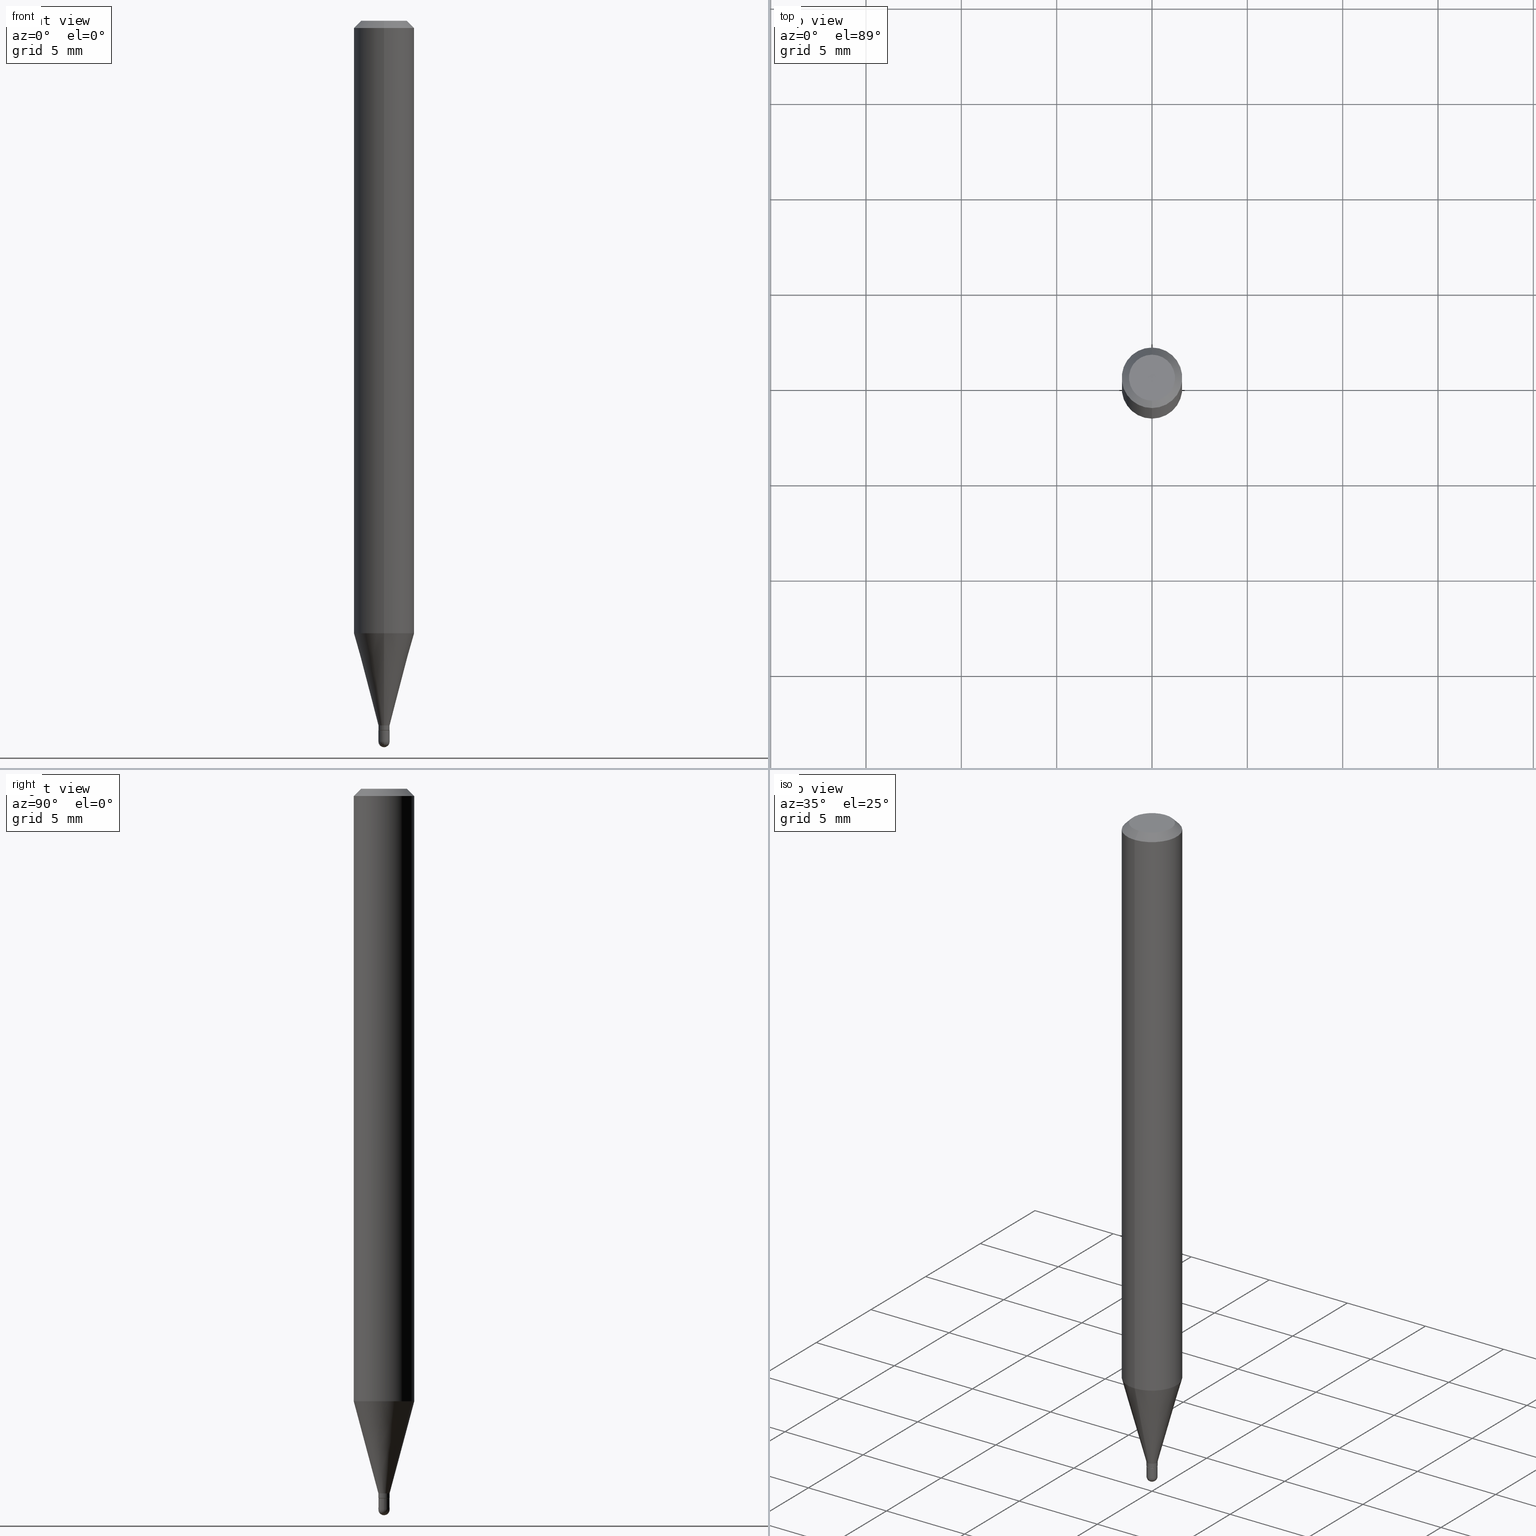
[diagram: canonical four-view strip — front | top / right | iso, engineering-drawing reading convention]
A machine part, canonical four-view strip (front | top / right | iso — engineering-drawing reading convention). The complete STEP part file that produces these views, byte-faithful:
ISO-10303-21;
HEADER;
FILE_DESCRIPTION (( 'STEP AP203' ),
    '1' );
FILE_NAME ('03047.STEP',
    '2024-03-08T18:03:28',
    ( '' ),
    ( '' ),
    'SwSTEP 2.0',
    'SolidWorks 2023',
    '' );
FILE_SCHEMA (( 'CONFIG_CONTROL_DESIGN' ));
ENDSEC;

DATA;
#1 = CARTESIAN_POINT ( 'NONE',  ( 8.171241461244765968E-17, 0.01149999999999476788, -1.488499999999999934 ) ) ;
#2 = ORIENTED_EDGE ( 'NONE', *, *, #170, .T. ) ;
#3 = CARTESIAN_POINT ( 'NONE',  ( 0.000000000000000000, 0.000000000000000000, 0.000000000000000000 ) ) ;
#4 = AXIS2_PLACEMENT_3D ( 'NONE', #508, #466, #498 ) ;
#5 = PERSON_AND_ORGANIZATION ( #509, #36 ) ;
#6 = DIRECTION ( 'NONE',  ( -2.445468806185136597E-29, 3.491481338843145583E-15, 1.000000000000000000 ) ) ;
#7 = ORIENTED_EDGE ( 'NONE', *, *, #163, .F. ) ;
#8 = APPROVAL ( #512, 'UNSPECIFIED' ) ;
#9 = CARTESIAN_POINT ( 'NONE',  ( 3.558155548032866696E-29, -5.080107589137887116E-15, -1.454999999999999849 ) ) ;
#10 = ORIENTED_EDGE ( 'NONE', *, *, #18, .F. ) ;
#11 = EDGE_LOOP ( 'NONE', ( #240, #290, #249, #296 ) ) ;
#12 = ORIENTED_EDGE ( 'NONE', *, *, #215, .T. ) ;
#13 = VECTOR ( 'NONE', #340, 39.37007874015748143 ) ;
#14 = EDGE_CURVE ( 'NONE', #354, #220, #192, .T. ) ;
#15 = AXIS2_PLACEMENT_3D ( 'NONE', #182, #67, #186 ) ;
#16 = DIRECTION ( 'NONE',  ( -2.445467730606780965E-29, 3.491482879132568905E-15, 1.000000000000000000 ) ) ;
#17 = ORIENTED_EDGE ( 'NONE', *, *, #55, .T. ) ;
#18 = EDGE_CURVE ( 'NONE', #171, #30, #39, .T. ) ;
#19 = ORIENTED_EDGE ( 'NONE', *, *, #367, .F. ) ;
#20 = DIRECTION ( 'NONE',  ( -2.445467730606780965E-29, 3.491482879132568905E-15, 1.000000000000000000 ) ) ;
#21 = FACE_OUTER_BOUND ( 'NONE', #459, .T. ) ;
#22 = EDGE_LOOP ( 'NONE', ( #495, #366, #216, #342 ) ) ;
#23 = CIRCLE ( 'NONE', #419, 0.06250000000000000000 ) ;
#24 = CARTESIAN_POINT ( 'NONE',  ( 3.092698447269238654E-29, -4.415557622705228023E-15, -1.264665408813987479 ) ) ;
#25 = VERTEX_POINT ( 'NONE', #297 ) ;
#26 = DIRECTION ( 'NONE',  ( -6.982962677686265922E-15, -1.000000000000000000, 4.370956789862821150E-15 ) ) ;
#27 = VERTEX_POINT ( 'NONE', #454 ) ;
#28 = CARTESIAN_POINT ( 'NONE',  ( -8.030407079339151842E-17, -0.01149999999999992348, 4.015205311002427370E-17 ) ) ;
#29 = DIRECTION ( 'NONE',  ( 6.982962677686265922E-15, 1.000000000000000000, -3.483106191921935554E-15 ) ) ;
#30 = VERTEX_POINT ( 'NONE', #65 ) ;
#31 = AXIS2_PLACEMENT_3D ( 'NONE', #137, #69, #375 ) ;
#32 = CARTESIAN_POINT ( 'NONE',  ( 0.000000000000000000, 0.000000000000000000, 0.000000000000000000 ) ) ;
#33 = EDGE_CURVE ( 'NONE', #364, #220, #213, .T. ) ;
#34 = ADVANCED_FACE ( 'NONE', ( #497 ), #343, .T. ) ;
#35 = DIRECTION ( 'NONE',  ( -2.445468806185136597E-29, 3.491481338843145583E-15, 1.000000000000000000 ) ) ;
#36 = ORGANIZATION ( 'UNSPECIFIED', 'UNSPECIFIED', '' ) ;
#37 = DIRECTION ( 'NONE',  ( -2.445467730606780965E-29, 3.491482879132568905E-15, 1.000000000000000000 ) ) ;
#38 = DIRECTION ( 'NONE',  ( -6.982962677686265133E-15, -1.000000000000000000, 0.000000000000000000 ) ) ;
#39 = CIRCLE ( 'NONE', #330, 0.01149999999999999981 ) ;
#40 = AXIS2_PLACEMENT_3D ( 'NONE', #112, #417, #421 ) ;
#41 = PERSON_AND_ORGANIZATION ( #509, #36 ) ;
#42 = VERTEX_POINT ( 'NONE', #302 ) ;
#43 = VECTOR ( 'NONE', #188, 39.37007874015748143 ) ;
#44 = DIRECTION ( 'NONE',  ( -6.982962677686265922E-15, -1.000000000000000000, 0.000000000000000000 ) ) ;
#45 = DIRECTION ( 'NONE',  ( -6.982962677686265133E-15, -1.000000000000000000, 0.000000000000000000 ) ) ;
#46 = CALENDAR_DATE ( 2024, 8, 3 ) ;
#47 = DIRECTION ( 'NONE',  ( 7.105427357601001070E-15, 1.000000000000000000, 0.000000000000000000 ) ) ;
#48 = ORIENTED_EDGE ( 'NONE', *, *, #55, .F. ) ;
#49 = PERSON_AND_ORGANIZATION ( #509, #36 ) ;
#50 = DIRECTION ( 'NONE',  ( -2.445467730606780965E-29, 3.491482879132568905E-15, 1.000000000000000000 ) ) ;
#51 = ORIENTED_EDGE ( 'NONE', *, *, #14, .F. ) ;
#52 = FACE_OUTER_BOUND ( 'NONE', #200, .T. ) ;
#53 = EDGE_LOOP ( 'NONE', ( #486, #379, #361, #164, #275 ) ) ;
#54 = ORIENTED_EDGE ( 'NONE', *, *, #382, .T. ) ;
#55 = EDGE_CURVE ( 'NONE', #27, #107, #185, .T. ) ;
#56 = EDGE_CURVE ( 'NONE', #220, #354, #503, .T. ) ;
#57 = AXIS2_PLACEMENT_3D ( 'NONE', #264, #76, #63 ) ;
#58 = AXIS2_PLACEMENT_3D ( 'NONE', #323, #6, #483 ) ;
#59 = ORIENTED_EDGE ( 'NONE', *, *, #165, .T. ) ;
#60 = ADVANCED_FACE ( 'NONE', ( #373 ), #460, .F. ) ;
#61 = AXIS2_PLACEMENT_3D ( 'NONE', #462, #422, #388 ) ;
#62 = DIRECTION ( 'NONE',  ( 1.000000000000000000, -6.982962677686291165E-15, 0.000000000000000000 ) ) ;
#63 = DIRECTION ( 'NONE',  ( -6.982962677686266711E-15, -1.000000000000000000, 0.000000000000000000 ) ) ;
#64 = CIRCLE ( 'NONE', #77, 0.01100000000000000110 ) ;
#65 = CARTESIAN_POINT ( 'NONE',  ( -0.01149999999999999981, -5.074332652524203511E-15, -1.488499999999999934 ) ) ;
#66 = APPROVAL_PERSON_ORGANIZATION ( #5, #276, #156 ) ;
#67 = DIRECTION ( 'NONE',  ( -2.445468806185136597E-29, 3.491481338843145583E-15, 1.000000000000000000 ) ) ;
#68 = ORIENTED_EDGE ( 'NONE', *, *, #205, .T. ) ;
#69 = DIRECTION ( 'NONE',  ( 2.438088387897960049E-29, -3.491481338843145188E-15, -1.000000000000000000 ) ) ;
#70 = FACE_OUTER_BOUND ( 'NONE', #234, .T. ) ;
#71 = ORIENTED_EDGE ( 'NONE', *, *, #346, .T. ) ;
#72 = EDGE_CURVE ( 'NONE', #162, #191, #319, .T. ) ;
#73 = SPHERICAL_SURFACE ( 'NONE', #452, 0.01149999999999993215 ) ;
#74 = EDGE_CURVE ( 'NONE', #220, #448, #381, .T. ) ;
#75 = FACE_OUTER_BOUND ( 'NONE', #104, .T. ) ;
#76 = DIRECTION ( 'NONE',  ( -2.445467730606780965E-29, 3.491482879132568905E-15, 1.000000000000000000 ) ) ;
#77 = AXIS2_PLACEMENT_3D ( 'NONE', #124, #401, #281 ) ;
#78 = CARTESIAN_POINT ( 'NONE',  ( 0.000000000000000000, 0.000000000000000000, 0.000000000000000000 ) ) ;
#79 = DIRECTION ( 'NONE',  ( -6.982962677686265133E-15, -1.000000000000000000, 0.000000000000000000 ) ) ;
#80 = EDGE_CURVE ( 'NONE', #162, #198, #177, .T. ) ;
#81 = LINE ( 'NONE', #228, #43 ) ;
#82 = CC_DESIGN_DATE_AND_TIME_ASSIGNMENT ( #394, #441, ( #129 ) ) ;
#83 = CIRCLE ( 'NONE', #157, 0.01149999999999993215 ) ;
#84 = PERSON_AND_ORGANIZATION_ROLE ( 'design_supplier' ) ;
#85 = CC_DESIGN_APPROVAL ( #245, ( #181 ) ) ;
#86 = PERSON_AND_ORGANIZATION ( #509, #36 ) ;
#87 = CARTESIAN_POINT ( 'NONE',  ( 8.171241461244653802E-17, 0.01149999999999484421, -1.454999999999999849 ) ) ;
#88 = VERTEX_POINT ( 'NONE', #267 ) ;
#89 = EDGE_CURVE ( 'NONE', #122, #212, #180, .T. ) ;
#90 = EDGE_CURVE ( 'NONE', #409, #212, #262, .T. ) ;
#91 = EDGE_LOOP ( 'NONE', ( #327, #248 ) ) ;
#92 = CIRCLE ( 'NONE', #427, 0.01149999999999992348 ) ;
#93 = ORIENTED_EDGE ( 'NONE', *, *, #205, .F. ) ;
#94 = CARTESIAN_POINT ( 'NONE',  ( -0.01149999999999999981, 8.171241461241151999E-17, -5.656775353793142476E-31 ) ) ;
#95 = ADVANCED_FACE ( 'NONE', ( #465 ), #73, .T. ) ;
#96 = ORIENTED_EDGE ( 'NONE', *, *, #140, .T. ) ;
#97 = EDGE_LOOP ( 'NONE', ( #223, #463, #411, #179 ) ) ;
#98 = DIRECTION ( 'NONE',  ( -6.982962677686265922E-15, -1.000000000000000000, 0.000000000000000000 ) ) ;
#99 = AXIS2_PLACEMENT_3D ( 'NONE', #187, #230, #151 ) ;
#100 = DIRECTION ( 'NONE',  ( -2.445468806185136597E-29, 3.491481338843145583E-15, 1.000000000000000000 ) ) ;
#101 = APPROVAL_PERSON_ORGANIZATION ( #41, #8, #236 ) ;
#102 = ORIENTED_EDGE ( 'NONE', *, *, #491, .F. ) ;
#103 = DIRECTION ( 'NONE',  ( -2.445468806185136877E-29, 3.491481338843145188E-15, 1.000000000000000000 ) ) ;
#104 = EDGE_LOOP ( 'NONE', ( #54, #372, #329, #266 ) ) ;
#105 = CARTESIAN_POINT ( 'NONE',  ( 3.092698447269238654E-29, -4.415557622705228023E-15, -1.264665408813987479 ) ) ;
#106 = DIRECTION ( 'NONE',  ( -2.445467730606780965E-29, 3.491482879132568905E-15, 1.000000000000000000 ) ) ;
#107 = VERTEX_POINT ( 'NONE', #424 ) ;
#108 = APPROVAL_PERSON_ORGANIZATION ( #315, #245, #392 ) ;
#109 = CARTESIAN_POINT ( 'NONE',  ( 7.993605777304681600E-17, 0.01099999999999488540, -1.465000000000000080 ) ) ;
#110 = ADVANCED_FACE ( 'NONE', ( #426 ), #386, .T. ) ;
#111 = CARTESIAN_POINT ( 'NONE',  ( -0.01149999999999999981, -5.074332652524203511E-15, -1.465000000000000080 ) ) ;
#112 = CARTESIAN_POINT ( 'NONE',  ( 3.582610225338934170E-29, -5.115022417929213693E-15, -1.465000000000000080 ) ) ;
#113 = CYLINDRICAL_SURFACE ( 'NONE', #349, 0.01149999999999999981 ) ;
#114 = CARTESIAN_POINT ( 'NONE',  ( 3.558155548032866696E-29, -5.080107589137887116E-15, -1.454999999999999849 ) ) ;
#115 =( CONVERSION_BASED_UNIT ( 'INCH', #473 ) LENGTH_UNIT ( ) NAMED_UNIT ( #328 ) );
#116 = CALENDAR_DATE ( 2024, 8, 3 ) ;
#117 = DATE_AND_TIME ( #46, #311 ) ;
#118 = CARTESIAN_POINT ( 'NONE',  ( 4.440892098500936776E-16, 0.06249999999999993755, -0.01499999999999997863 ) ) ;
#119 = ORIENTED_EDGE ( 'NONE', *, *, #18, .T. ) ;
#120 = CIRCLE ( 'NONE', #15, 0.01149999999999999981 ) ;
#121 = EDGE_CURVE ( 'NONE', #385, #364, #226, .T. ) ;
#122 = VERTEX_POINT ( 'NONE', #383 ) ;
#123 = DATE_AND_TIME ( #398, #303 ) ;
#124 = CARTESIAN_POINT ( 'NONE',  ( 3.582610225338934170E-29, -5.115022417929213693E-15, -1.465000000000000080 ) ) ;
#125 = FACE_OUTER_BOUND ( 'NONE', #282, .T. ) ;
#126 = ADVANCED_FACE ( 'NONE', ( #149 ), #307, .T. ) ;
#127 = CLOSED_SHELL ( 'NONE', ( #141, #324, #492, #415, #269, #393, #126, #451, #357, #405, #344, #110 ) ) ;
#128 = CONICAL_SURFACE ( 'NONE', #136, 0.01149999999999992348, 0.2617993877991502960 ) ;
#129 = SECURITY_CLASSIFICATION ( '', '', #317 ) ;
#130 = DIRECTION ( 'NONE',  ( -6.982962677686265922E-15, -1.000000000000000000, 3.491482879132568905E-15 ) ) ;
#131 = DIRECTION ( 'NONE',  ( -2.445467730606780965E-29, 3.491482879132568905E-15, 1.000000000000000000 ) ) ;
#132 = MANIFOLD_SOLID_BREP ( 'Body-Move/Copy2[1]', #255 ) ;
#133 = DIRECTION ( 'NONE',  ( -2.445467730606780965E-29, 3.491482879132568905E-15, 1.000000000000000000 ) ) ;
#134 = DIRECTION ( 'NONE',  ( -4.937700262164674260E-15, -0.7071067811865632269, 0.7071067811865319186 ) ) ;
#135 = CC_DESIGN_PERSON_AND_ORGANIZATION_ASSIGNMENT ( #274, #431, ( #129 ) ) ;
#136 = AXIS2_PLACEMENT_3D ( 'NONE', #347, #505, #38 ) ;
#137 = CARTESIAN_POINT ( 'NONE',  ( 8.030407079342786765E-17, 0.01149999999999488411, -1.465000000000000080 ) ) ;
#138 = FACE_OUTER_BOUND ( 'NONE', #91, .T. ) ;
#139 = EDGE_LOOP ( 'NONE', ( #68, #263 ) ) ;
#140 = EDGE_CURVE ( 'NONE', #354, #88, #250, .T. ) ;
#141 = ADVANCED_FACE ( 'NONE', ( #489 ), #453, .T. ) ;
#142 = CARTESIAN_POINT ( 'NONE',  ( 7.815970093364683513E-17, 0.01099999999999488540, -1.465000000000000080 ) ) ;
#143 = ORIENTED_EDGE ( 'NONE', *, *, #227, .T. ) ;
#144 = VECTOR ( 'NONE', #217, 39.37007874015748143 ) ;
#145 = CONICAL_SURFACE ( 'NONE', #272, 0.01149999999999992348, 0.2617993877991502960 ) ;
#146 = CARTESIAN_POINT ( 'NONE',  ( 3.582611801061225047E-29, -5.115020161405208194E-15, -1.465000000000000080 ) ) ;
#147 = FACE_OUTER_BOUND ( 'NONE', #488, .T. ) ;
#148 = DIRECTION ( 'NONE',  ( -2.445468806185136597E-29, 3.491481338843145583E-15, 1.000000000000000000 ) ) ;
#149 = FACE_OUTER_BOUND ( 'NONE', #11, .T. ) ;
#150 = FACE_OUTER_BOUND ( 'NONE', #476, .T. ) ;
#151 = DIRECTION ( 'NONE',  ( -6.982962677686265922E-15, -1.000000000000000000, 0.000000000000000000 ) ) ;
#152 = CIRCLE ( 'NONE', #300, 0.04749999999999999362 ) ;
#153 = EDGE_CURVE ( 'NONE', #27, #42, #152, .T. ) ;
#154 = APPROVAL_STATUS ( 'not_yet_approved' ) ;
#155 = MECHANICAL_CONTEXT ( 'NONE', #229, 'mechanical' ) ;
#156 = APPROVAL_ROLE ( '' ) ;
#157 = AXIS2_PLACEMENT_3D ( 'NONE', #407, #449, #98 ) ;
#158 = COORDINATED_UNIVERSAL_TIME_OFFSET ( 5, 0, .BEHIND. ) ;
#159 = CARTESIAN_POINT ( 'NONE',  ( -4.364351673553607559E-16, -0.06250000000000441314, -1.264665408813987257 ) ) ;
#160 = COORDINATED_UNIVERSAL_TIME_OFFSET ( 5, 0, .BEHIND. ) ;
#161 = CARTESIAN_POINT ( 'NONE',  ( -5.856619264596289913E-45, 8.361707511414266109E-31, 2.394887158516345188E-16 ) ) ;
#162 = VERTEX_POINT ( 'NONE', #210 ) ;
#163 = EDGE_CURVE ( 'NONE', #176, #25, #83, .T. ) ;
#164 = ORIENTED_EDGE ( 'NONE', *, *, #89, .T. ) ;
#165 = EDGE_CURVE ( 'NONE', #448, #191, #253, .T. ) ;
#166 = AXIS2_PLACEMENT_3D ( 'NONE', #105, #221, #26 ) ;
#167 = ORIENTED_EDGE ( 'NONE', *, *, #254, .F. ) ;
#168 = AXIS2_PLACEMENT_3D ( 'NONE', #350, #295, #430 ) ;
#169 = ORIENTED_EDGE ( 'NONE', *, *, #283, .T. ) ;
#170 = EDGE_CURVE ( 'NONE', #176, #171, #404, .T. ) ;
#171 = VERTEX_POINT ( 'NONE', #1 ) ;
#172 = AXIS2_PLACEMENT_3D ( 'NONE', #146, #148, #173 ) ;
#173 = DIRECTION ( 'NONE',  ( 1.000000000000000000, -6.982962677686291165E-15, 0.000000000000000000 ) ) ;
#174 = VECTOR ( 'NONE', #507, 39.37007874015748143 ) ;
#175 = LINE ( 'NONE', #268, #174 ) ;
#176 = VERTEX_POINT ( 'NONE', #480 ) ;
#177 = LINE ( 'NONE', #270, #13 ) ;
#178 = CARTESIAN_POINT ( 'NONE',  ( -8.030407079335594572E-17, -0.01150000000000500275, -1.454999999999999849 ) ) ;
#179 = ORIENTED_EDGE ( 'NONE', *, *, #346, .F. ) ;
#180 = LINE ( 'NONE', #506, #193 ) ;
#181 = PRODUCT_DEFINITION ( 'UNKNOWN', '', #429, #432 ) ;
#182 = CARTESIAN_POINT ( 'NONE',  ( 3.640080318006575506E-29, -5.197069972868022017E-15, -1.488499999999999934 ) ) ;
#183 = ORIENTED_EDGE ( 'NONE', *, *, #56, .T. ) ;
#184 = AXIS2_PLACEMENT_3D ( 'NONE', #410, #333, #416 ) ;
#185 = LINE ( 'NONE', #259, #144 ) ;
#186 = DIRECTION ( 'NONE',  ( 1.000000000000000000, -6.982962677686291165E-15, 0.000000000000000000 ) ) ;
#187 = CARTESIAN_POINT ( 'NONE',  ( 3.582610225338934170E-29, -5.115022417929213693E-15, -1.465000000000000080 ) ) ;
#188 = DIRECTION ( 'NONE',  ( -2.445467730606780965E-29, 3.491482879132568905E-15, 1.000000000000000000 ) ) ;
#189 = CC_DESIGN_PERSON_AND_ORGANIZATION_ASSIGNMENT ( #362, #231, ( #273 ) ) ;
#190 = APPROVAL_STATUS ( 'not_yet_approved' ) ;
#191 = VERTEX_POINT ( 'NONE', #159 ) ;
#192 = CIRCLE ( 'NONE', #207, 0.01149999999999992521 ) ;
#193 = VECTOR ( 'NONE', #103, 39.37007874015748143 ) ;
#194 = DIRECTION ( 'NONE',  ( 1.000000000000000000, -6.982962677686265922E-15, 4.883557194083112901E-29 ) ) ;
#195 = CARTESIAN_POINT ( 'NONE',  ( 0.000000000000000000, 0.000000000000000000, 0.000000000000000000 ) ) ;
#196 = ORIENTED_EDGE ( 'NONE', *, *, #74, .F. ) ;
#197 = DIRECTION ( 'NONE',  ( -2.445468806185136597E-29, 3.491481338843145583E-15, 1.000000000000000000 ) ) ;
#198 = VERTEX_POINT ( 'NONE', #118 ) ;
#199 = VECTOR ( 'NONE', #318, 39.37007874015748143 ) ;
#200 = EDGE_LOOP ( 'NONE', ( #447, #406, #423, #377 ) ) ;
#201 = DIRECTION ( 'NONE',  ( 1.000000000000000000, 0.000000000000000000, 0.000000000000000000 ) ) ;
#202 = DIRECTION ( 'NONE',  ( -6.982962677686265922E-15, -1.000000000000000000, 3.483106191921935554E-15 ) ) ;
#203 = CARTESIAN_POINT ( 'NONE',  ( -5.856619264596289913E-45, 8.361707511414266109E-31, 2.394887158516345188E-16 ) ) ;
#204 = ORIENTED_EDGE ( 'NONE', *, *, #89, .F. ) ;
#205 = EDGE_CURVE ( 'NONE', #212, #409, #494, .T. ) ;
#206 = FACE_OUTER_BOUND ( 'NONE', #243, .T. ) ;
#207 = AXIS2_PLACEMENT_3D ( 'NONE', #493, #133, #288 ) ;
#208 = AXIS2_PLACEMENT_3D ( 'NONE', #294, #197, #468 ) ;
#209 = ORIENTED_EDGE ( 'NONE', *, *, #310, .F. ) ;
#210 = CARTESIAN_POINT ( 'NONE',  ( 4.440892098500932831E-16, 0.06249999999999557992, -1.264665408813987924 ) ) ;
#211 = EDGE_CURVE ( 'NONE', #364, #385, #64, .T. ) ;
#212 = VERTEX_POINT ( 'NONE', #242 ) ;
#213 = LINE ( 'NONE', #260, #334 ) ;
#214 = CIRCLE ( 'NONE', #353, 0.06250000000000000000 ) ;
#215 = EDGE_CURVE ( 'NONE', #198, #107, #23, .T. ) ;
#216 = ORIENTED_EDGE ( 'NONE', *, *, #56, .F. ) ;
#217 = DIRECTION ( 'NONE',  ( -4.851104656540964275E-15, -0.7071067811865500152, -0.7071067811865450192 ) ) ;
#218 = CONICAL_SURFACE ( 'NONE', #481, 0.06250000000000000000, 0.7853981633974483900 ) ;
#219 = DIRECTION ( 'NONE',  ( -2.445467730606780965E-29, 3.491482879132568905E-15, 1.000000000000000000 ) ) ;
#220 = VERTEX_POINT ( 'NONE', #363 ) ;
#221 = DIRECTION ( 'NONE',  ( -2.445467730606780965E-29, 3.491482879132568905E-15, 1.000000000000000000 ) ) ;
#222 = CARTESIAN_POINT ( 'NONE',  ( 0.000000000000000000, 0.000000000000000000, 0.000000000000000000 ) ) ;
#223 = ORIENTED_EDGE ( 'NONE', *, *, #140, .F. ) ;
#224 = DIRECTION ( 'NONE',  ( -6.982962677686265922E-15, -1.000000000000000000, 0.000000000000000000 ) ) ;
#225 = CARTESIAN_POINT ( 'NONE',  ( 3.668201595910112680E-31, -5.237224318698770158E-17, -0.01499999999999976179 ) ) ;
#226 = CIRCLE ( 'NONE', #40, 0.01100000000000000110 ) ;
#227 = EDGE_CURVE ( 'NONE', #42, #27, #345, .T. ) ;
#228 = CARTESIAN_POINT ( 'NONE',  ( -4.364351673553916201E-16, -0.06250000000000000000, 2.182176799457855566E-16 ) ) ;
#229 = APPLICATION_CONTEXT ( 'configuration controlled 3d designs of mechanical parts and assemblies' ) ;
#230 = DIRECTION ( 'NONE',  ( -2.445467730606780965E-29, 3.491482879132568905E-15, 1.000000000000000000 ) ) ;
#231 = PERSON_AND_ORGANIZATION_ROLE ( 'design_owner' ) ;
#232 = DIRECTION ( 'NONE',  ( 2.445467730606780685E-29, -3.491482879132568905E-15, -1.000000000000000000 ) ) ;
#233 = COORDINATED_UNIVERSAL_TIME_OFFSET ( 5, 0, .BEHIND. ) ;
#234 = EDGE_LOOP ( 'NONE', ( #119, #169, #93, #204, #286 ) ) ;
#235 = AXIS2_PLACEMENT_3D ( 'NONE', #78, #37, #130 ) ;
#236 = APPROVAL_ROLE ( '' ) ;
#237 = CIRCLE ( 'NONE', #61, 0.06250000000000000000 ) ;
#238 = DATE_AND_TIME ( #358, #370 ) ;
#239 = DIRECTION ( 'NONE',  ( 1.839019923739600710E-15, 0.2588190451025250138, 0.9659258262890670910 ) ) ;
#240 = ORIENTED_EDGE ( 'NONE', *, *, #80, .F. ) ;
#241 = COORDINATED_UNIVERSAL_TIME_OFFSET ( 5, 0, .BEHIND. ) ;
#242 = CARTESIAN_POINT ( 'NONE',  ( 0.01149999999999999981, -5.195324232198600513E-15, -1.465000000000000080 ) ) ;
#243 = EDGE_LOOP ( 'NONE', ( #7, #2, #408, #209 ) ) ;
#244 = AXIS2_PLACEMENT_3D ( 'NONE', #359, #442, #47 ) ;
#245 = APPROVAL ( #190, 'UNSPECIFIED' ) ;
#246 = LOCAL_TIME ( 13, 3, 28.00000000000000000, #313 ) ;
#247 = DIRECTION ( 'NONE',  ( -2.445467730606780965E-29, 3.491482879132568905E-15, 1.000000000000000000 ) ) ;
#248 = ORIENTED_EDGE ( 'NONE', *, *, #121, .F. ) ;
#249 = ORIENTED_EDGE ( 'NONE', *, *, #496, .T. ) ;
#250 = LINE ( 'NONE', #365, #472 ) ;
#251 = ORIENTED_EDGE ( 'NONE', *, *, #227, .F. ) ;
#252 = ORIENTED_EDGE ( 'NONE', *, *, #72, .F. ) ;
#253 = LINE ( 'NONE', #371, #199 ) ;
#254 = EDGE_CURVE ( 'NONE', #88, #162, #440, .T. ) ;
#255 = CLOSED_SHELL ( 'NONE', ( #478, #305, #60, #95, #34 ) ) ;
#256 = CONICAL_SURFACE ( 'NONE', #99, 0.01100000000000000110, 0.7853981633974739252 ) ;
#257 = ORIENTED_EDGE ( 'NONE', *, *, #33, .T. ) ;
#258 =( GEOMETRIC_REPRESENTATION_CONTEXT ( 3 ) GLOBAL_UNCERTAINTY_ASSIGNED_CONTEXT ( ( #314 ) ) GLOBAL_UNIT_ASSIGNED_CONTEXT ( ( #115, #438, #325 ) ) REPRESENTATION_CONTEXT ( 'NONE', 'WORKASPACE' ) );
#259 = CARTESIAN_POINT ( 'NONE',  ( -4.287811248607203282E-16, -0.06250000000000005551, -0.01499999999999954321 ) ) ;
#260 = CARTESIAN_POINT ( 'NONE',  ( -7.681258945451311115E-17, -0.01100000000000511680, -1.465000000000000080 ) ) ;
#261 = DIRECTION ( 'NONE',  ( 2.445467730606780965E-29, -3.491482879132568905E-15, -1.000000000000000000 ) ) ;
#262 = CIRCLE ( 'NONE', #172, 0.01149999999999999981 ) ;
#263 = ORIENTED_EDGE ( 'NONE', *, *, #90, .T. ) ;
#264 = CARTESIAN_POINT ( 'NONE',  ( 3.581387491473631132E-29, -5.113276676489647009E-15, -1.464500000000000135 ) ) ;
#265 = CARTESIAN_POINT ( 'NONE',  ( 3.558155548032866696E-29, -5.080107589137887116E-15, -1.454999999999999849 ) ) ;
#266 = ORIENTED_EDGE ( 'NONE', *, *, #496, .F. ) ;
#267 = CARTESIAN_POINT ( 'NONE',  ( 2.629008122312701386E-16, 0.01149999999999484421, -1.454999999999999849 ) ) ;
#268 = CARTESIAN_POINT ( 'NONE',  ( 4.364351673553919652E-16, 0.06249999999999995143, -0.01499999999999997863 ) ) ;
#269 = ADVANCED_FACE ( 'NONE', ( #52 ), #145, .T. ) ;
#270 = CARTESIAN_POINT ( 'NONE',  ( 4.440892098500625669E-16, 0.06250000000000000000, -2.182176799457855566E-16 ) ) ;
#271 = CARTESIAN_POINT ( 'NONE',  ( 3.668201595910112680E-31, -5.237224318698770158E-17, -0.01499999999999976179 ) ) ;
#272 = AXIS2_PLACEMENT_3D ( 'NONE', #9, #316, #45 ) ;
#273 = PRODUCT ( '03047', '03047', '', ( #155 ) ) ;
#274 = PERSON_AND_ORGANIZATION ( #509, #36 ) ;
#275 = ORIENTED_EDGE ( 'NONE', *, *, #90, .F. ) ;
#276 = APPROVAL ( #154, 'UNSPECIFIED' ) ;
#277 = APPLICATION_PROTOCOL_DEFINITION ( 'international standard', 'config_control_design', 1994, #511 ) ;
#278 = DIRECTION ( 'NONE',  ( -6.982962677686265133E-15, -1.000000000000000000, 0.000000000000000000 ) ) ;
#279 = DIRECTION ( 'NONE',  ( -6.982962677686266711E-15, -1.000000000000000000, 3.491482879132570088E-15 ) ) ;
#280 = PERSON_AND_ORGANIZATION_ROLE ( 'creator' ) ;
#281 = DIRECTION ( 'NONE',  ( -6.982962677686265922E-15, -1.000000000000000000, 0.000000000000000000 ) ) ;
#282 = EDGE_LOOP ( 'NONE', ( #143, #485 ) ) ;
#283 = EDGE_CURVE ( 'NONE', #30, #409, #446, .T. ) ;
#284 = DIRECTION ( 'NONE',  ( 0.000000000000000000, 0.000000000000000000, 1.000000000000000000 ) ) ;
#285 = CIRCLE ( 'NONE', #4, 0.01149999999999999981 ) ;
#286 = ORIENTED_EDGE ( 'NONE', *, *, #399, .T. ) ;
#287 = ORIENTED_EDGE ( 'NONE', *, *, #436, .F. ) ;
#288 = DIRECTION ( 'NONE',  ( -6.982962677686266711E-15, -1.000000000000000000, 0.000000000000000000 ) ) ;
#289 = AXIS2_PLACEMENT_3D ( 'NONE', #391, #232, #304 ) ;
#290 = ORIENTED_EDGE ( 'NONE', *, *, #72, .T. ) ;
#291 = CC_DESIGN_SECURITY_CLASSIFICATION ( #129, ( #429 ) ) ;
#292 = DIRECTION ( 'NONE',  ( -2.445467730606780965E-29, 3.491482879132568905E-15, 1.000000000000000000 ) ) ;
#293 = PRODUCT_RELATED_PRODUCT_CATEGORY ( 'detail', '', ( #273 ) ) ;
#294 = CARTESIAN_POINT ( 'NONE',  ( 3.640080318006575506E-29, -5.197069972868022017E-15, -1.488499999999999934 ) ) ;
#295 = DIRECTION ( 'NONE',  ( -2.445467730606780685E-29, 3.491482879132568905E-15, 1.000000000000000000 ) ) ;
#296 = ORIENTED_EDGE ( 'NONE', *, *, #215, .F. ) ;
#297 = CARTESIAN_POINT ( 'NONE',  ( -8.030407079335542803E-17, -0.01150000000000516581, -1.488499999999999934 ) ) ;
#298 = AXIS2_PLACEMENT_3D ( 'NONE', #348, #456, #502 ) ;
#299 = DIRECTION ( 'NONE',  ( -2.445467730606780965E-29, 3.491482879132568905E-15, 1.000000000000000000 ) ) ;
#300 = AXIS2_PLACEMENT_3D ( 'NONE', #203, #131, #484 ) ;
#301 = EDGE_LOOP ( 'NONE', ( #183, #96, #19, #196 ) ) ;
#302 = CARTESIAN_POINT ( 'NONE',  ( 3.840629472727447874E-16, 0.04749999999999999362, 7.364327909283752044E-17 ) ) ;
#303 = LOCAL_TIME ( 13, 3, 28.00000000000000000, #160 ) ;
#304 = DIRECTION ( 'NONE',  ( 6.982962677686265922E-15, 1.000000000000000000, -3.491482879132568905E-15 ) ) ;
#305 = ADVANCED_FACE ( 'NONE', ( #206 ), #471, .T. ) ;
#306 = CARTESIAN_POINT ( 'NONE',  ( 3.639096876774019405E-29, -5.198478316687040897E-15, -1.488499999999999934 ) ) ;
#307 = CYLINDRICAL_SURFACE ( 'NONE', #235, 0.06250000000000000000 ) ;
#308 = CYLINDRICAL_SURFACE ( 'NONE', #397, 0.06250000000000000000 ) ;
#309 = VECTOR ( 'NONE', #356, 39.37007874015748143 ) ;
#310 = EDGE_CURVE ( 'NONE', #25, #122, #368, .T. ) ;
#311 = LOCAL_TIME ( 13, 3, 28.00000000000000000, #241 ) ;
#312 = CARTESIAN_POINT ( 'NONE',  ( 3.639096876774019405E-29, -5.198478316687040897E-15, -1.488499999999999934 ) ) ;
#313 = COORDINATED_UNIVERSAL_TIME_OFFSET ( 5, 0, .BEHIND. ) ;
#314 = UNCERTAINTY_MEASURE_WITH_UNIT (LENGTH_MEASURE( 1.000000000000000082E-05 ), #115, 'distance_accuracy_value', 'NONE');
#315 = PERSON_AND_ORGANIZATION ( #509, #36 ) ;
#316 = DIRECTION ( 'NONE',  ( -2.445467730606780965E-29, 3.491482879132568905E-15, 1.000000000000000000 ) ) ;
#317 = SECURITY_CLASSIFICATION_LEVEL ( 'unclassified' ) ;
#318 = DIRECTION ( 'NONE',  ( -1.807323732225330534E-15, -0.2588190451025182415, 0.9659258262890689783 ) ) ;
#319 = CIRCLE ( 'NONE', #166, 0.06250000000000000000 ) ;
#320 = AXIS2_PLACEMENT_3D ( 'NONE', #161, #326, #279 ) ;
#321 = CALENDAR_DATE ( 2024, 8, 3 ) ;
#322 = AXIS2_PLACEMENT_3D ( 'NONE', #225, #261, #29 ) ;
#323 = CARTESIAN_POINT ( 'NONE',  ( 3.582611801061225047E-29, -5.115020161405208194E-15, -1.465000000000000080 ) ) ;
#324 = ADVANCED_FACE ( 'NONE', ( #487 ), #444, .T. ) ;
#325 =( NAMED_UNIT ( * ) SI_UNIT ( $, .STERADIAN. ) SOLID_ANGLE_UNIT ( ) );
#326 = DIRECTION ( 'NONE',  ( -2.445467730606780965E-29, 3.491482879132568905E-15, 1.000000000000000000 ) ) ;
#327 = ORIENTED_EDGE ( 'NONE', *, *, #211, .F. ) ;
#328 = DIMENSIONAL_EXPONENTS ( 1.000000000000000000, 0.000000000000000000, 0.000000000000000000, 0.000000000000000000, 0.000000000000000000, 0.000000000000000000, 0.000000000000000000 ) ;
#329 = ORIENTED_EDGE ( 'NONE', *, *, #457, .F. ) ;
#330 = AXIS2_PLACEMENT_3D ( 'NONE', #450, #100, #62 ) ;
#331 = DIRECTION ( 'NONE',  ( -2.445467730606780965E-29, 3.491482879132568905E-15, 1.000000000000000000 ) ) ;
#332 = ORIENTED_EDGE ( 'NONE', *, *, #153, .F. ) ;
#333 = DIRECTION ( 'NONE',  ( -2.445467730606780965E-29, 3.491482879132568905E-15, 1.000000000000000000 ) ) ;
#334 = VECTOR ( 'NONE', #134, 39.37007874015748143 ) ;
#335 = AXIS2_PLACEMENT_3D ( 'NONE', #3, #247, #412 ) ;
#336 = DIRECTION ( 'NONE',  ( 1.000000000000000000, -6.982962677686265922E-15, 4.883557194083112901E-29 ) ) ;
#337 = CC_DESIGN_DATE_AND_TIME_ASSIGNMENT ( #238, #355, ( #181 ) ) ;
#338 = DIRECTION ( 'NONE',  ( -6.982962677686265922E-15, -1.000000000000000000, 4.370956789862821150E-15 ) ) ;
#339 = ORIENTED_EDGE ( 'NONE', *, *, #170, .F. ) ;
#340 = DIRECTION ( 'NONE',  ( -2.445467730606780965E-29, 3.491482879132568905E-15, 1.000000000000000000 ) ) ;
#341 = LINE ( 'NONE', #142, #376 ) ;
#342 = ORIENTED_EDGE ( 'NONE', *, *, #33, .F. ) ;
#343 = CYLINDRICAL_SURFACE ( 'NONE', #298, 0.01149999999999999981 ) ;
#344 = ADVANCED_FACE ( 'NONE', ( #21 ), #256, .T. ) ;
#345 = CIRCLE ( 'NONE', #320, 0.04749999999999999362 ) ;
#346 = EDGE_CURVE ( 'NONE', #88, #448, #479, .T. ) ;
#347 = CARTESIAN_POINT ( 'NONE',  ( 3.558155548032866696E-29, -5.080107589137887116E-15, -1.454999999999999849 ) ) ;
#348 = CARTESIAN_POINT ( 'NONE',  ( 0.000000000000000000, 0.000000000000000000, 0.000000000000000000 ) ) ;
#349 = AXIS2_PLACEMENT_3D ( 'NONE', #420, #35, #469 ) ;
#350 = CARTESIAN_POINT ( 'NONE',  ( 3.582610225338934170E-29, -5.115022417929213693E-15, -1.465000000000000080 ) ) ;
#351 = DIRECTION ( 'NONE',  ( 5.024295867788190974E-15, 0.7071067811865681119, 0.7071067811865270336 ) ) ;
#352 = APPROVAL_DATE_TIME ( #123, #245 ) ;
#353 = AXIS2_PLACEMENT_3D ( 'NONE', #24, #299, #338 ) ;
#354 = VERTEX_POINT ( 'NONE', #439 ) ;
#355 = DATE_TIME_ROLE ( 'creation_date' ) ;
#356 = DIRECTION ( 'NONE',  ( -2.445468806185136877E-29, 3.491481338843145188E-15, 1.000000000000000000 ) ) ;
#357 = ADVANCED_FACE ( 'NONE', ( #125 ), #445, .F. ) ;
#358 = CALENDAR_DATE ( 2024, 8, 3 ) ;
#359 = CARTESIAN_POINT ( 'NONE',  ( 3.639096876774019405E-29, -5.198478316687040897E-15, -1.488499999999999934 ) ) ;
#360 = CC_DESIGN_PERSON_AND_ORGANIZATION_ASSIGNMENT ( #49, #280, ( #429 ) ) ;
#361 = ORIENTED_EDGE ( 'NONE', *, *, #310, .T. ) ;
#362 = PERSON_AND_ORGANIZATION ( #509, #36 ) ;
#363 = CARTESIAN_POINT ( 'NONE',  ( -8.030407079335600735E-17, -0.01150000000000507734, -1.464500000000000135 ) ) ;
#364 = VERTEX_POINT ( 'NONE', #390 ) ;
#365 = CARTESIAN_POINT ( 'NONE',  ( 8.171241461241096533E-17, 0.01149999999999992348, -4.015205311002427370E-17 ) ) ;
#366 = ORIENTED_EDGE ( 'NONE', *, *, #380, .T. ) ;
#367 = EDGE_CURVE ( 'NONE', #448, #88, #92, .T. ) ;
#368 = CIRCLE ( 'NONE', #208, 0.01149999999999999981 ) ;
#369 = CC_DESIGN_PERSON_AND_ORGANIZATION_ASSIGNMENT ( #86, #84, ( #429 ) ) ;
#370 = LOCAL_TIME ( 13, 3, 28.00000000000000000, #158 ) ;
#371 = CARTESIAN_POINT ( 'NONE',  ( -8.030407079335594572E-17, -0.01150000000000500275, -1.454999999999999849 ) ) ;
#372 = ORIENTED_EDGE ( 'NONE', *, *, #80, .T. ) ;
#373 = FACE_OUTER_BOUND ( 'NONE', #139, .T. ) ;
#374 = PRODUCT_DEFINITION_SHAPE ( 'NONE', 'NONE',  #181 ) ;
#375 = DIRECTION ( 'NONE',  ( -1.000000000000000000, 6.982962677686265922E-15, -4.876176775795935793E-29 ) ) ;
#376 = VECTOR ( 'NONE', #351, 39.37007874015748143 ) ;
#377 = ORIENTED_EDGE ( 'NONE', *, *, #165, .F. ) ;
#378 = DIRECTION ( 'NONE',  ( 6.982962677686265922E-15, 1.000000000000000000, -3.483106191921935554E-15 ) ) ;
#379 = ORIENTED_EDGE ( 'NONE', *, *, #491, .T. ) ;
#380 = EDGE_CURVE ( 'NONE', #385, #354, #341, .T. ) ;
#381 = LINE ( 'NONE', #28, #504 ) ;
#382 = EDGE_CURVE ( 'NONE', #191, #162, #214, .T. ) ;
#383 = CARTESIAN_POINT ( 'NONE',  ( 0.01149999999999999981, -5.236349137930007031E-15, -1.488499999999999934 ) ) ;
#384 = DIRECTION ( 'NONE',  ( -6.982962677686265922E-15, -1.000000000000000000, 3.491482879132568905E-15 ) ) ;
#385 = VERTEX_POINT ( 'NONE', #109 ) ;
#386 = CYLINDRICAL_SURFACE ( 'NONE', #461, 0.01149999999999992348 ) ;
#387 = AXIS2_PLACEMENT_3D ( 'NONE', #114, #16, #278 ) ;
#388 = DIRECTION ( 'NONE',  ( -6.982962677686265922E-15, -1.000000000000000000, 3.483106191921935554E-15 ) ) ;
#389 = CC_DESIGN_APPROVAL ( #8, ( #129 ) ) ;
#390 = CARTESIAN_POINT ( 'NONE',  ( -7.681258945451311115E-17, -0.01100000000000511680, -1.465000000000000080 ) ) ;
#391 = CARTESIAN_POINT ( 'NONE',  ( 3.316907271900976096E-16, 0.04749999999999999362, -4.610107883297974511E-17 ) ) ;
#392 = APPROVAL_ROLE ( '' ) ;
#393 = ADVANCED_FACE ( 'NONE', ( #147 ), #128, .T. ) ;
#394 = DATE_AND_TIME ( #116, #474 ) ;
#395 = VECTOR ( 'NONE', #239, 39.37007874015748143 ) ;
#396 = EDGE_LOOP ( 'NONE', ( #48, #251, #402, #12 ) ) ;
#397 = AXIS2_PLACEMENT_3D ( 'NONE', #222, #106, #384 ) ;
#398 = CALENDAR_DATE ( 2024, 8, 3 ) ;
#399 = EDGE_CURVE ( 'NONE', #122, #171, #285, .T. ) ;
#400 = APPROVAL_DATE_TIME ( #117, #8 ) ;
#401 = DIRECTION ( 'NONE',  ( -2.445467730606780965E-29, 3.491482879132568905E-15, 1.000000000000000000 ) ) ;
#402 = ORIENTED_EDGE ( 'NONE', *, *, #436, .T. ) ;
#403 = CARTESIAN_POINT ( 'NONE',  ( 3.668201595910112680E-31, -5.237224318698770158E-17, -0.01499999999999976179 ) ) ;
#404 = CIRCLE ( 'NONE', #244, 0.01149999999999993215 ) ;
#405 = ADVANCED_FACE ( 'NONE', ( #138 ), #425, .F. ) ;
#406 = ORIENTED_EDGE ( 'NONE', *, *, #254, .T. ) ;
#407 = CARTESIAN_POINT ( 'NONE',  ( 3.639096876774019405E-29, -5.198478316687040897E-15, -1.488499999999999934 ) ) ;
#408 = ORIENTED_EDGE ( 'NONE', *, *, #399, .F. ) ;
#409 = VERTEX_POINT ( 'NONE', #111 ) ;
#410 = CARTESIAN_POINT ( 'NONE',  ( 3.582610225338934170E-29, -5.115022417929213693E-15, -1.465000000000000080 ) ) ;
#411 = ORIENTED_EDGE ( 'NONE', *, *, #74, .T. ) ;
#412 = DIRECTION ( 'NONE',  ( -6.982962677686265133E-15, -1.000000000000000000, 3.491482879132568905E-15 ) ) ;
#413 = CC_DESIGN_APPROVAL ( #276, ( #429 ) ) ;
#414 = EDGE_LOOP ( 'NONE', ( #339, #501, #102, #10 ) ) ;
#415 = ADVANCED_FACE ( 'NONE', ( #75 ), #308, .T. ) ;
#416 = DIRECTION ( 'NONE',  ( -6.982962677686265922E-15, -1.000000000000000000, 0.000000000000000000 ) ) ;
#417 = DIRECTION ( 'NONE',  ( -2.445467730606780965E-29, 3.491482879132568905E-15, 1.000000000000000000 ) ) ;
#418 = ADVANCED_BREP_SHAPE_REPRESENTATION ( '03047', ( #132, #490, #437 ), #258 ) ;
#419 = AXIS2_PLACEMENT_3D ( 'NONE', #403, #50, #202 ) ;
#420 = CARTESIAN_POINT ( 'NONE',  ( 0.000000000000000000, 0.000000000000000000, 0.000000000000000000 ) ) ;
#421 = DIRECTION ( 'NONE',  ( -6.982962677686265922E-15, -1.000000000000000000, 0.000000000000000000 ) ) ;
#422 = DIRECTION ( 'NONE',  ( -2.445467730606780965E-29, 3.491482879132568905E-15, 1.000000000000000000 ) ) ;
#423 = ORIENTED_EDGE ( 'NONE', *, *, #382, .F. ) ;
#424 = CARTESIAN_POINT ( 'NONE',  ( -4.364351673553912750E-16, -0.06250000000000005551, -0.01499999999999954321 ) ) ;
#425 = PLANE ( 'NONE',  #168 ) ;
#426 = FACE_OUTER_BOUND ( 'NONE', #97, .T. ) ;
#427 = AXIS2_PLACEMENT_3D ( 'NONE', #265, #219, #79 ) ;
#428 = DIRECTION ( 'NONE',  ( 2.445467730606780965E-29, -3.491482879132568905E-15, -1.000000000000000000 ) ) ;
#429 = PRODUCT_DEFINITION_FORMATION_WITH_SPECIFIED_SOURCE ( 'ANY', '', #273, .NOT_KNOWN. ) ;
#430 = DIRECTION ( 'NONE',  ( -6.982962677686265922E-15, -1.000000000000000000, 3.491482879132568905E-15 ) ) ;
#431 = PERSON_AND_ORGANIZATION_ROLE ( 'classification_officer' ) ;
#432 = DESIGN_CONTEXT ( 'detailed design', #511, 'design' ) ;
#433 = ORIENTED_EDGE ( 'NONE', *, *, #121, .T. ) ;
#434 = DATE_AND_TIME ( #321, #246 ) ;
#435 = AXIS2_PLACEMENT_3D ( 'NONE', #312, #194, #44 ) ;
#436 = EDGE_CURVE ( 'NONE', #42, #198, #175, .T. ) ;
#437 = AXIS2_PLACEMENT_3D ( 'NONE', #195, #284, #201 ) ;
#438 =( NAMED_UNIT ( * ) PLANE_ANGLE_UNIT ( ) SI_UNIT ( $, .RADIAN. ) );
#439 = CARTESIAN_POINT ( 'NONE',  ( 8.171241461244651337E-17, 0.01149999999999477308, -1.464500000000000135 ) ) ;
#440 = LINE ( 'NONE', #87, #395 ) ;
#441 = DATE_TIME_ROLE ( 'classification_date' ) ;
#442 = DIRECTION ( 'NONE',  ( 1.000000000000000000, -7.105427357601001070E-15, 4.926315508542082329E-29 ) ) ;
#443 = APPLICATION_PROTOCOL_DEFINITION ( 'international standard', 'config_control_design', 1994, #229 ) ;
#444 = CONICAL_SURFACE ( 'NONE', #184, 0.01100000000000000110, 0.7853981633974739252 ) ;
#445 = PLANE ( 'NONE',  #289 ) ;
#446 = LINE ( 'NONE', #94, #309 ) ;
#447 = ORIENTED_EDGE ( 'NONE', *, *, #367, .T. ) ;
#448 = VERTEX_POINT ( 'NONE', #178 ) ;
#449 = DIRECTION ( 'NONE',  ( -1.000000000000000000, 6.982962677686265922E-15, -4.883557194083112340E-29 ) ) ;
#450 = CARTESIAN_POINT ( 'NONE',  ( 3.640080318006575506E-29, -5.197069972868022017E-15, -1.488499999999999934 ) ) ;
#451 = ADVANCED_FACE ( 'NONE', ( #458 ), #464, .T. ) ;
#452 = AXIS2_PLACEMENT_3D ( 'NONE', #306, #336, #224 ) ;
#453 = CYLINDRICAL_SURFACE ( 'NONE', #335, 0.01149999999999992348 ) ;
#454 = CARTESIAN_POINT ( 'NONE',  ( -3.773273898774340269E-16, -0.04749999999999999362, 4.053341526104315664E-16 ) ) ;
#455 = ORIENTED_EDGE ( 'NONE', *, *, #457, .T. ) ;
#456 = DIRECTION ( 'NONE',  ( -2.445468806185136597E-29, 3.491481338843145583E-15, 1.000000000000000000 ) ) ;
#457 = EDGE_CURVE ( 'NONE', #107, #198, #237, .T. ) ;
#458 = FACE_OUTER_BOUND ( 'NONE', #396, .T. ) ;
#459 = EDGE_LOOP ( 'NONE', ( #499, #433, #257, #51 ) ) ;
#460 = PLANE ( 'NONE',  #31 ) ;
#461 = AXIS2_PLACEMENT_3D ( 'NONE', #32, #20, #467 ) ;
#462 = CARTESIAN_POINT ( 'NONE',  ( 3.668201595910112680E-31, -5.237224318698770158E-17, -0.01499999999999976179 ) ) ;
#463 = ORIENTED_EDGE ( 'NONE', *, *, #14, .T. ) ;
#464 = CONICAL_SURFACE ( 'NONE', #322, 0.06250000000000000000, 0.7853981633974483900 ) ;
#465 = FACE_OUTER_BOUND ( 'NONE', #414, .T. ) ;
#466 = DIRECTION ( 'NONE',  ( -2.445468806185136597E-29, 3.491481338843145583E-15, 1.000000000000000000 ) ) ;
#467 = DIRECTION ( 'NONE',  ( -6.982962677686265133E-15, -1.000000000000000000, 3.491482879132568905E-15 ) ) ;
#468 = DIRECTION ( 'NONE',  ( 1.000000000000000000, -6.982962677686291165E-15, 0.000000000000000000 ) ) ;
#469 = DIRECTION ( 'NONE',  ( 1.000000000000000000, -6.982962677686267499E-15, 4.876176775795935793E-29 ) ) ;
#470 = CC_DESIGN_PERSON_AND_ORGANIZATION_ASSIGNMENT ( #475, #510, ( #181 ) ) ;
#471 = SPHERICAL_SURFACE ( 'NONE', #435, 0.01149999999999993215 ) ;
#472 = VECTOR ( 'NONE', #331, 39.37007874015748143 ) ;
#473 = LENGTH_MEASURE_WITH_UNIT ( LENGTH_MEASURE( 0.02539999999999999897 ), #500 );
#474 = LOCAL_TIME ( 13, 3, 28.00000000000000000, #233 ) ;
#475 = PERSON_AND_ORGANIZATION ( #509, #36 ) ;
#476 = EDGE_LOOP ( 'NONE', ( #332, #17, #455, #287 ) ) ;
#477 = APPROVAL_DATE_TIME ( #434, #276 ) ;
#478 = ADVANCED_FACE ( 'NONE', ( #70 ), #113, .T. ) ;
#479 = CIRCLE ( 'NONE', #387, 0.01149999999999992348 ) ;
#480 = CARTESIAN_POINT ( 'NONE',  ( 3.666728047428870464E-29, -5.239334523993246102E-15, -1.499999999999999778 ) ) ;
#481 = AXIS2_PLACEMENT_3D ( 'NONE', #271, #428, #378 ) ;
#482 = SHAPE_DEFINITION_REPRESENTATION ( #374, #418 ) ;
#483 = DIRECTION ( 'NONE',  ( 1.000000000000000000, -6.982962677686291165E-15, 0.000000000000000000 ) ) ;
#484 = DIRECTION ( 'NONE',  ( -6.982962677686266711E-15, -1.000000000000000000, 3.491482879132570088E-15 ) ) ;
#485 = ORIENTED_EDGE ( 'NONE', *, *, #153, .T. ) ;
#486 = ORIENTED_EDGE ( 'NONE', *, *, #283, .F. ) ;
#487 = FACE_OUTER_BOUND ( 'NONE', #22, .T. ) ;
#488 = EDGE_LOOP ( 'NONE', ( #167, #71, #59, #252 ) ) ;
#489 = FACE_OUTER_BOUND ( 'NONE', #301, .T. ) ;
#490 = MANIFOLD_SOLID_BREP ( 'Body-Move/Copy2[2]', #127 ) ;
#491 = EDGE_CURVE ( 'NONE', #30, #25, #120, .T. ) ;
#492 = ADVANCED_FACE ( 'NONE', ( #150 ), #218, .T. ) ;
#493 = CARTESIAN_POINT ( 'NONE',  ( 3.581387491473631132E-29, -5.113276676489647009E-15, -1.464500000000000135 ) ) ;
#494 = CIRCLE ( 'NONE', #58, 0.01149999999999999981 ) ;
#495 = ORIENTED_EDGE ( 'NONE', *, *, #211, .T. ) ;
#496 = EDGE_CURVE ( 'NONE', #191, #107, #81, .T. ) ;
#497 = FACE_OUTER_BOUND ( 'NONE', #53, .T. ) ;
#498 = DIRECTION ( 'NONE',  ( 1.000000000000000000, -6.982962677686291165E-15, 0.000000000000000000 ) ) ;
#499 = ORIENTED_EDGE ( 'NONE', *, *, #380, .F. ) ;
#500 =( LENGTH_UNIT ( ) NAMED_UNIT ( * ) SI_UNIT ( $, .METRE. ) );
#501 = ORIENTED_EDGE ( 'NONE', *, *, #163, .T. ) ;
#502 = DIRECTION ( 'NONE',  ( 1.000000000000000000, -6.982962677686267499E-15, 4.876176775795935793E-29 ) ) ;
#503 = CIRCLE ( 'NONE', #57, 0.01149999999999992521 ) ;
#504 = VECTOR ( 'NONE', #292, 39.37007874015748143 ) ;
#505 = DIRECTION ( 'NONE',  ( -2.445467730606780965E-29, 3.491482879132568905E-15, 1.000000000000000000 ) ) ;
#506 = CARTESIAN_POINT ( 'NONE',  ( 0.01149999999999999981, -8.030407079339207309E-17, 5.607603292165326057E-31 ) ) ;
#507 = DIRECTION ( 'NONE',  ( 4.937700262164548042E-15, 0.7071067811865451302, -0.7071067811865499042 ) ) ;
#508 = CARTESIAN_POINT ( 'NONE',  ( 3.640080318006575506E-29, -5.197069972868022017E-15, -1.488499999999999934 ) ) ;
#509 = PERSON ( 'UNSPECIFIED', 'UNSPECIFIED', 'UNSPECIFIED', ('UNSPECIFIED'), ('UNSPECIFIED'), ('UNSPECIFIED') ) ;
#510 = PERSON_AND_ORGANIZATION_ROLE ( 'creator' ) ;
#511 = APPLICATION_CONTEXT ( 'configuration controlled 3d designs of mechanical parts and assemblies' ) ;
#512 = APPROVAL_STATUS ( 'not_yet_approved' ) ;
ENDSEC;
END-ISO-10303-21;
